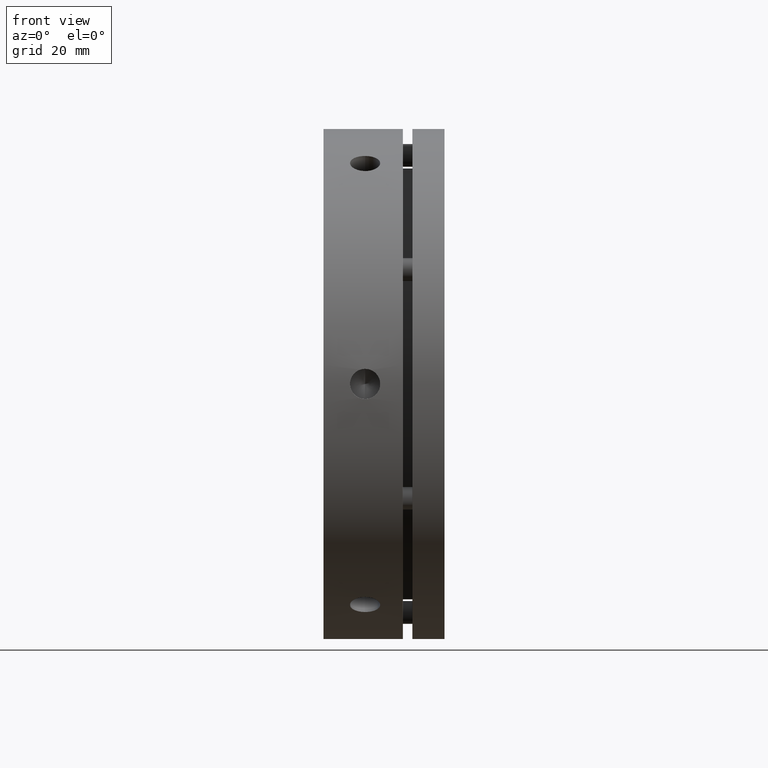
[diagram: clean part render]
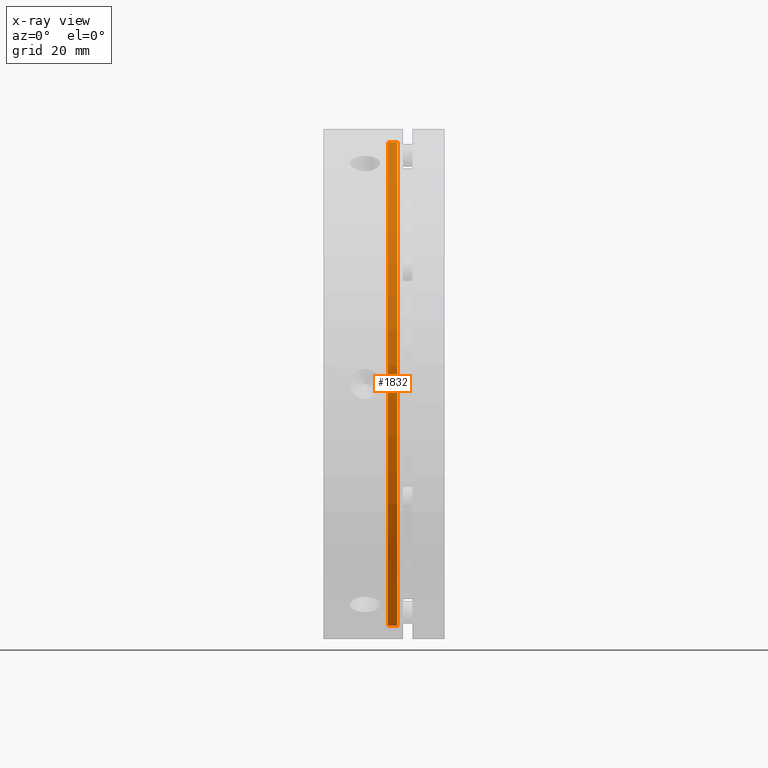
[diagram: x-ray — body ghosted, one internal face saturated and labeled with its STEP entity id]
A machine part, front view, then the same camera in x-ray: the body is ghosted and one INTERNAL B-rep face — a face not visible from any outside direction — is saturated and labeled: STEP entity #1832.
In plain terms, the highlighted cylindrical surface (partial cylindrical patch) has radius 64 mm, axis along (-1, 0, 0).
Its self-contained STEP definition (entity closure, byte-faithful):
#85 = ORIENTED_EDGE ( 'NONE', *, *, #4546, .T. ) ;
#86 = ORIENTED_EDGE ( 'NONE', *, *, #4544, .T. ) ;
#87 = ORIENTED_EDGE ( 'NONE', *, *, #4553, .T. ) ;
#198 = EDGE_LOOP ( 'NONE', ( #85, #86, #87, #254 ) ) ;
#254 = ORIENTED_EDGE ( 'NONE', *, *, #4622, .F. ) ;
#507 = AXIS2_PLACEMENT_3D ( 'NONE', #3823, #3824, #3825 ) ;
#509 = AXIS2_PLACEMENT_3D ( 'NONE', #3808, #3809, #3810 ) ;
#811 = AXIS2_PLACEMENT_3D ( 'NONE', #1806, #1804, #1802 ) ;
#1802 = DIRECTION ( 'NONE',  ( 0.0000000000000000000, 0.0000000000000000000, 1.000000000000000000 ) ) ;
#1804 = DIRECTION ( 'NONE',  ( -1.000000000000000000, 0.0000000000000000000, 0.0000000000000000000 ) ) ;
#1806 = CARTESIAN_POINT ( 'NONE',  ( 18.24999999999998900, 0.0000000000000000000, 0.0000000000000000000 ) ) ;
#1832 = ADVANCED_FACE ( 'NONE', ( #4452 ), #4443, .F. ) ;
#2030 = VERTEX_POINT ( 'NONE', #3200 ) ;
#2031 = VERTEX_POINT ( 'NONE', #3201 ) ;
#2036 = VERTEX_POINT ( 'NONE', #3206 ) ;
#2037 = VERTEX_POINT ( 'NONE', #3207 ) ;
#2225 = CIRCLE ( 'NONE', #507, 64.00000000000000000 ) ;
#2236 = CIRCLE ( 'NONE', #509, 64.00000000000000000 ) ;
#2237 = VECTOR ( 'NONE', #3801, 1000.000000000000000 ) ;
#2244 = LINE ( 'NONE', #3793, #2237 ) ;
#3200 = CARTESIAN_POINT ( 'NONE',  ( 16.99999999999999300, 0.0000000000000000000, 64.00000000000000000 ) ) ;
#3201 = CARTESIAN_POINT ( 'NONE',  ( 16.99999999999999300, 7.837739514543060500E-015, -64.00000000000000000 ) ) ;
#3206 = CARTESIAN_POINT ( 'NONE',  ( 19.49999999999998900, 7.837739514543060500E-015, -64.00000000000000000 ) ) ;
#3207 = CARTESIAN_POINT ( 'NONE',  ( 19.49999999999998900, 0.0000000000000000000, 64.00000000000000000 ) ) ;
#3793 = CARTESIAN_POINT ( 'NONE',  ( 18.24999999999998900, 7.837739514543060500E-015, -64.00000000000000000 ) ) ;
#3801 = DIRECTION ( 'NONE',  ( -1.000000000000000000, 0.0000000000000000000, 0.0000000000000000000 ) ) ;
#3808 = CARTESIAN_POINT ( 'NONE',  ( 19.49999999999998900, 0.0000000000000000000, 0.0000000000000000000 ) ) ;
#3809 = DIRECTION ( 'NONE',  ( 1.000000000000000000, -0.0000000000000000000, -0.0000000000000000000 ) ) ;
#3810 = DIRECTION ( 'NONE',  ( 0.0000000000000000000, 0.0000000000000000000, 1.000000000000000000 ) ) ;
#3823 = CARTESIAN_POINT ( 'NONE',  ( 16.99999999999999300, 0.0000000000000000000, 0.0000000000000000000 ) ) ;
#3824 = DIRECTION ( 'NONE',  ( -1.000000000000000000, 0.0000000000000000000, 0.0000000000000000000 ) ) ;
#3825 = DIRECTION ( 'NONE',  ( 0.0000000000000000000, 0.0000000000000000000, 1.000000000000000000 ) ) ;
#3990 = CARTESIAN_POINT ( 'NONE',  ( 18.24999999999998900, 0.0000000000000000000, 64.00000000000000000 ) ) ;
#3996 = DIRECTION ( 'NONE',  ( -1.000000000000000000, 0.0000000000000000000, 0.0000000000000000000 ) ) ;
#4443 = CYLINDRICAL_SURFACE ( 'NONE', #811, 64.00000000000000000 ) ;
#4452 = FACE_OUTER_BOUND ( 'NONE', #198, .T. ) ;
#4544 = EDGE_CURVE ( 'NONE', #2036, #2031, #2244, .T. ) ;
#4546 = EDGE_CURVE ( 'NONE', #2037, #2036, #2236, .T. ) ;
#4553 = EDGE_CURVE ( 'NONE', #2031, #2030, #2225, .T. ) ;
#4622 = EDGE_CURVE ( 'NONE', #2037, #2030, #4699, .T. ) ;
#4695 = VECTOR ( 'NONE', #3996, 1000.000000000000000 ) ;
#4699 = LINE ( 'NONE', #3990, #4695 ) ;